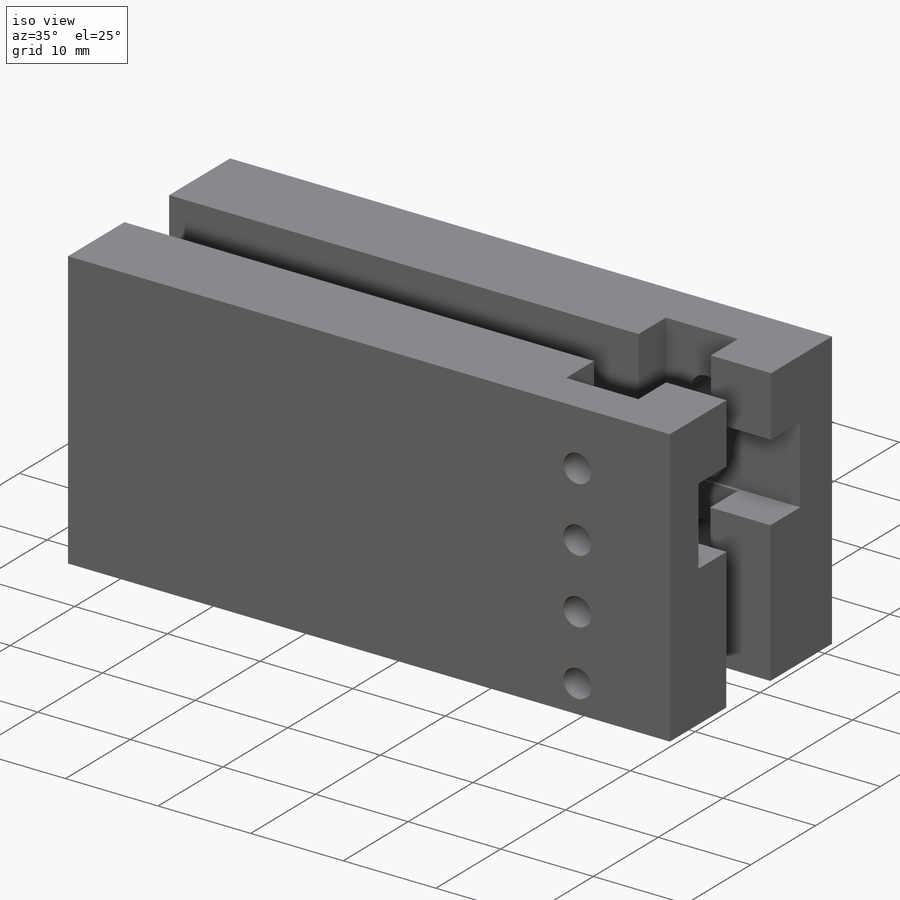
[diagram: iso view]
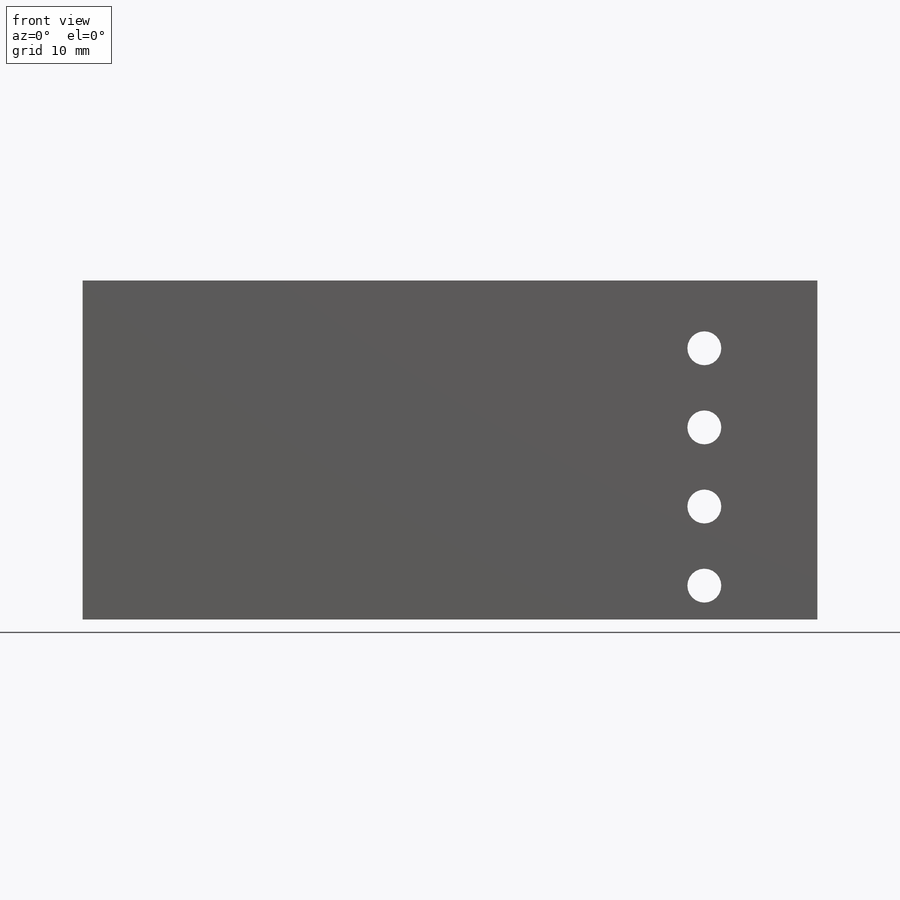
[diagram: front view]
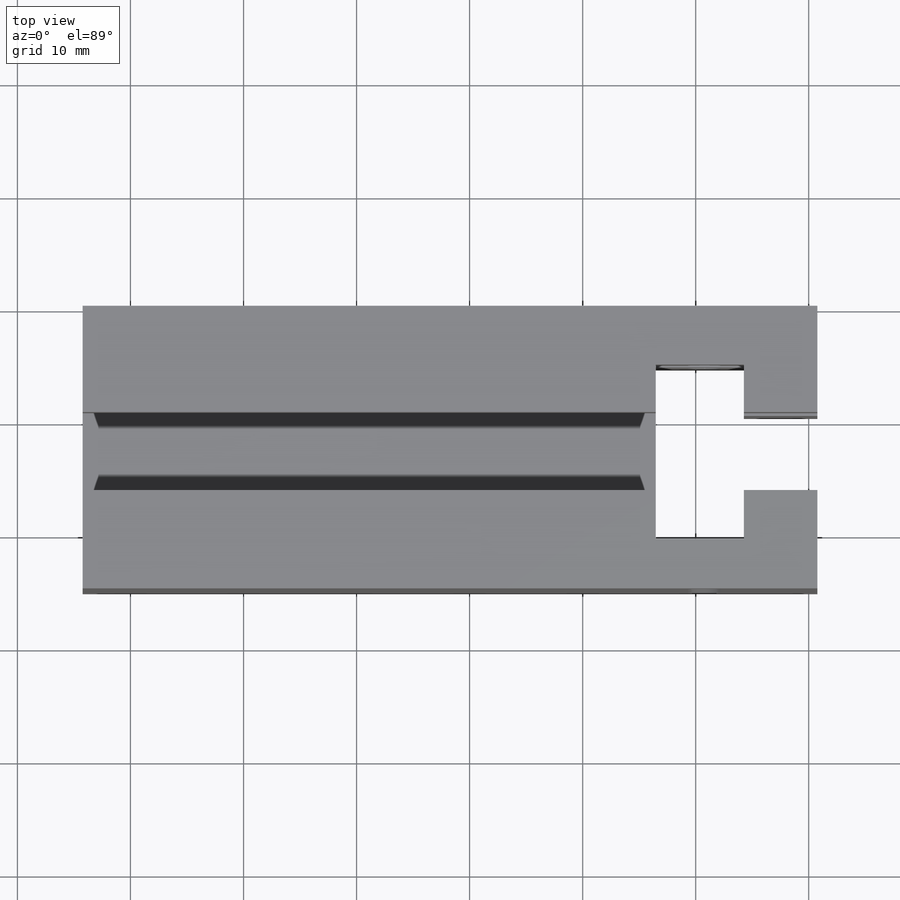
[diagram: top view]
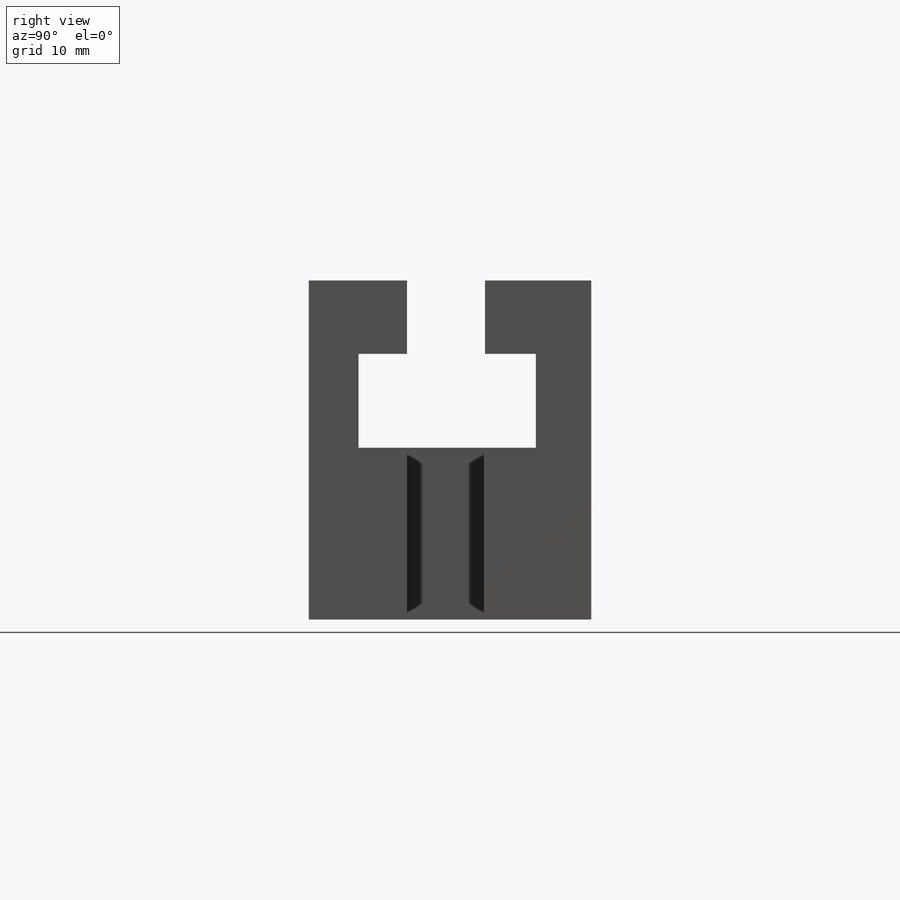
[diagram: right view]
SOLIDWORKS PART (.sldprt)
format: sldprt  version: not decoded by parser v0  size: 275,968 bytes
history: native  units: mm
features: sketch x5, cut_extrude x4, material x1, extrude x1 (+13 scaffold rows collapsed)
feature tree (24):
  scaffold x13  (default folders/planes/origin — collapsed)
  material  "Material <not specified>"
  sketch  "Sketch1"  dims[D1=30.0mm D2=65.0mm]
  extrude  "Boss-Extrude1"  Depth=25mm
  sketch  "Sketch2"  dims[c1.D1=0.0mm c1.D2=0.0mm c1.D3=4.3mm c1.D4=4.3mm c1.D5=6.8mm c1.D6=8.7mm c1.D7=7.8mm c1.D8=6.5mm c1.D9=14.7mm c2.D6=8.7mm]
  cut_extrude  "Cut-Extrude1"  [1 undecoded]
  sketch  "Sketch5"  dims[c1.D1=3.0mm c1.D2=3.0mm c1.D3=3.0mm c1.D4=~6.788214mm c1.D5=3.0mm c1.D6=3.0mm c1.D7=~5.717014mm c1.D8=3.0mm c1.D9=3.0mm c2.D3=~6.25585mm c3.D3=3.0mm c3.D4=3.0mm c3.D8=3.0mm c3.D9=3.0mm c3.D10=3.0mm c3.D2=6.0mm c4.D3=15.0mm c4.D4=15.0mm c4.D6=7.0mm c4.D7=7.0mm c4.D9=15.0mm c5.D4=10.0mm c5.D7=10.0mm c5.D9=7.0mm c5.D10=7.0mm]
  cut_extrude  "Cut-Extrude3"  [1 undecoded]
  sketch  "Sketch6"  dims[D1=0.0mm D2=0.0mm D3=6.9mm D4=4.3mm D5=6.5mm D6=8.7mm D7=4.5mm D8=8.3mm]
  cut_extrude  "Cut-Extrude4"  [1 undecoded]
  sketch  "Sketch7"  dims[c1.D1=3.0mm c1.D2=3.0mm c1.D3=3.0mm c1.D4=3.0mm c1.D5=~2.42095mm c1.D6=3.0mm c2.D2=3.0mm c2.D4=3.0mm c2.D5=3.0mm c2.D7=~3.029015mm c2.D8=3.0mm c3.D2=10.0mm c3.D4=10.0mm c3.D5=10.0mm c4.D2=10.0mm c4.D4=10.0mm c4.D5=10.0mm c4.D7=10.0mm]
  cut_extrude  "Cut-Extrude5"  Depth=10mm
decode coverage: 7 of 10 modeling features carry decoded parameters
note: ~ marks probable driven/reference dimensions
note: 3 parameter values undecoded
summary: no parameter record found for 3 features
note: suppression state not decoded; provenance and decode notes live in map.json
